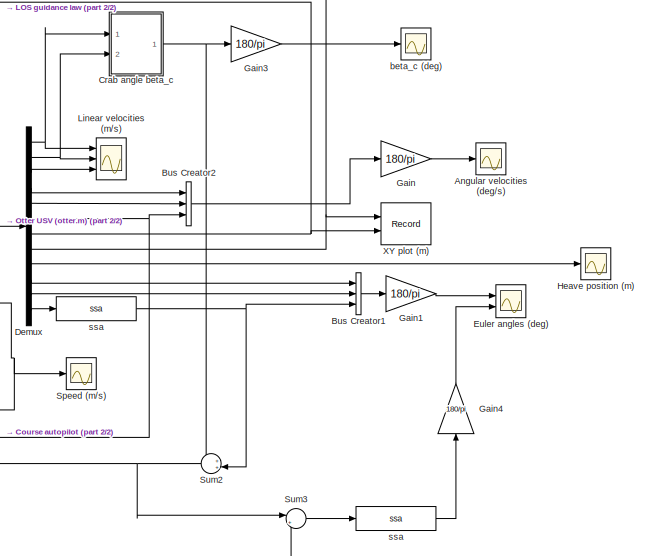
[diagram: root canvas - part 1/2, right side, full height]
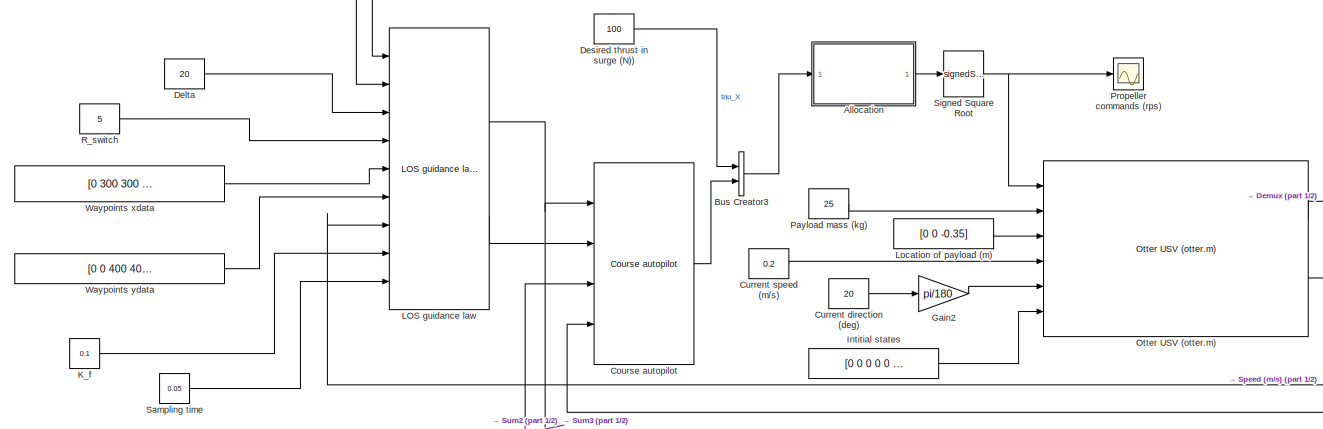
[diagram: root canvas - part 2/2, central region]
MODEL slx_a8864252b03a
KIND model
CONFIG AbsTol = auto
CONFIG EnableMultiTasking = off
CONFIG FixedStep = 0.05
CONFIG MaxStep = auto
CONFIG MinStep = auto
CONFIG RelTol = 1e-3
CONFIG SampleTimeConstraint = Unconstrained
CONFIG SolverName = ode4
CONFIG StartTime = 0.0
CONFIG StopTime = 2000
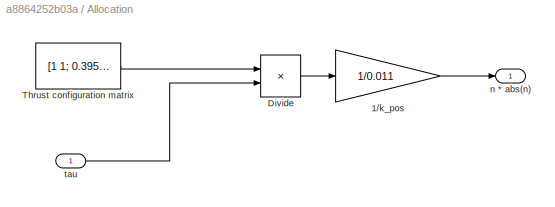
BLOCK [SubSystem] Allocation
  Ports = [1, 1]
  RequestExecContextInheritance = off
BLOCK [Gain] Allocation/1//k_pos
  Gain = 1/0.011
BLOCK [Product] Allocation/Divide
  Inputs = /*
  Multiplication = Matrix(*)
  Ports = [2, 1]
BLOCK [Constant] Allocation/Thrust configuration matrix
  Value = [1 1; 0.395 -0.395]
BLOCK [Outport] Allocation/n * abs(n)
BLOCK [Inport] Allocation/tau
BLOCK [Scope] Angular velocities (deg//s)
  Floating = off
  NumInputPorts = 1
  Ports = [1]
  ScopeSpecificationString = Simulink.scopes.TimeScopeBlockCfg('CurrentConfiguration', extmgr.ConfigurationSet(extmgr.Configuration('Core','General UI',true),extmgr.Configuration('Core','Source UI',true),extmgr.Configuration('Sources','WiredSimulink',true,'DataLoggingVariableName','ScopeData3'),extmgr.Configuration('Visuals','Time Domain',true,'SerializedDisplays',{struct('MinYLimReal','-39.2576','MaxYLimReal','41.18059','YLa...<+1460ch>
BLOCK [BusCreator] Bus Creator1
  DisplayOption = bar
  InheritFromInputs = on
  Inputs = 3
  Ports = [3, 1]
BLOCK [BusCreator] Bus Creator2
  DisplayOption = bar
  InheritFromInputs = on
  Inputs = 3
  Ports = [3, 1]
BLOCK [BusCreator] Bus Creator3
  DisplayOption = bar
  InheritFromInputs = on
  Inputs = 2
  Ports = [2, 1]
BLOCK [Reference] Course autopilot   REF=mssSimulink/Control/Autopilots/Course autopilot
  Ports = [4, 1]
  SourceBlock = mssSimulink/Control/Autopilots/Course autopilot
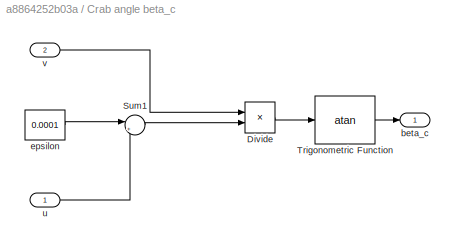
BLOCK [SubSystem] Crab angle beta_c
  Ports = [2, 1]
  RequestExecContextInheritance = off
BLOCK [Product] Crab angle beta_c/Divide
  Inputs = */
  Ports = [2, 1]
BLOCK [Sum] Crab angle beta_c/Sum1
  InputSameDT = on
  Inputs = |++
  OutDataTypeStr = Inherit: Same as first input
  Ports = [2, 1]
  SaturateOnIntegerOverflow = on
BLOCK [Trigonometry] Crab angle beta_c/Trigonometric Function
  Operator = atan
  Ports = [1, 1]
BLOCK [Outport] Crab angle beta_c/beta_c
BLOCK [Constant] Crab angle beta_c/epsilon
  Value = 0.0001
BLOCK [Inport] Crab angle beta_c/u
BLOCK [Inport] Crab angle beta_c/v
  Port = 2
BLOCK [Constant] Current direction (deg)
  Value = 20
BLOCK [Constant] Current speed (m//s)
  Value = 0.2
BLOCK [Constant] Delta
  Value = 20
BLOCK [Demux] Demux
  Outputs = 12
  Ports = [1, 12]
BLOCK [Constant] Desired thrust in surge (N))
  Value = 100
BLOCK [Scope] Euler angles (deg)
  Floating = off
  NumInputPorts = 2
  Ports = [2]
  ScopeSpecificationString = Simulink.scopes.TimeScopeBlockCfg('CurrentConfiguration', extmgr.ConfigurationSet(extmgr.Configuration('Core','General UI',true),extmgr.Configuration('Core','Source UI',true),extmgr.Configuration('Sources','WiredSimulink',true,'DataLoggingVariableName','ScopeData1'),extmgr.Configuration('Visuals','Time Domain',true,'SerializedDisplays',{struct('MinYLimReal','-224.98128','MaxYLimReal','224.99776','...<+2175ch>
BLOCK [Gain] Gain
  Gain = 180/pi
BLOCK [Gain] Gain1
  Gain = 180/pi
BLOCK [Gain] Gain2
  Gain = pi/180
BLOCK [Gain] Gain3
  Gain = 180/pi
BLOCK [Gain] Gain4
  Gain = 180/pi
  NameLocation = right
BLOCK [Scope] Heave position (m)
  Floating = off
  NumInputPorts = 1
  Ports = [1]
  ScopeSpecificationString = Simulink.scopes.TimeScopeBlockCfg('CurrentConfiguration', extmgr.ConfigurationSet(extmgr.Configuration('Core','General UI',true),extmgr.Configuration('Core','Source UI',true),extmgr.Configuration('Sources','WiredSimulink',true,'DataLoggingVariableName','ScopeData4'),extmgr.Configuration('Visuals','Time Domain',true,'SerializedDisplays',{struct('MinYLimReal','0.0303','MaxYLimReal','0.04718','YLabel...<+1498ch>
BLOCK [Constant] Intitial states
  Value = [0 0 0 0 0 0 0 0 0 0 0 0]
BLOCK [Constant] K_f
  Value = 0.1
BLOCK [Reference] LOS guidance law  REF=mssSimulink/Guidance/LOS guidance law for course autopilot
  Ports = [9, 2]
  SourceBlock = mssSimulink/Guidance/LOS guidance law for course autopilot
  SourceType = SubSystem
BLOCK [Scope] Linear velocities (m//s)
  Floating = off
  NumInputPorts = 3
  Ports = [3]
  ScopeSpecificationString = Simulink.scopes.TimeScopeBlockCfg('CurrentConfiguration', extmgr.ConfigurationSet(extmgr.Configuration('Core','General UI',true),extmgr.Configuration('Core','Source UI',true),extmgr.Configuration('Sources','WiredSimulink',true,'DataLoggingVariableName','ScopeData2'),extmgr.Configuration('Visuals','Time Domain',true,'SerializedDisplays',{struct('MinYLimReal','-0.29357','MaxYLimReal','1.69239','YLab...<+3067ch>
BLOCK [Constant] Location of payload (m)
  Value = [0 0 -0.35]
BLOCK [Reference] Otter USV (otter.m)   REF=mssSimulink/Marine craft models/Otter USV (otter.m)
  Ports = [6, 2]
  SourceBlock = mssSimulink/Marine craft models/Otter USV (otter.m)
BLOCK [Constant] Payload mass (kg)
  Value = 25
BLOCK [Scope] Propeller commands (rps)
  Floating = off
  NumInputPorts = 1
  Ports = [1]
  ScopeSpecificationString = Simulink.scopes.TimeScopeBlockCfg('CurrentConfiguration', extmgr.ConfigurationSet(extmgr.Configuration('Core','General UI',true),extmgr.Configuration('Core','Source UI',true),extmgr.Configuration('Sources','WiredSimulink',true,'DataLoggingVariableName','ScopeData1'),extmgr.Configuration('Visuals','Time Domain',true,'SerializedDisplays',{struct('MinYLimReal','-135.47305','MaxYLimReal','172.38499','...<+1491ch>
BLOCK [Constant] R_switch
  Value = 5
BLOCK [Constant] Sampling time
  Value = 0.05
BLOCK [Sqrt] Signed Square Root
  Operator = signedSqrt
BLOCK [Scope] Speed (m//s)
  Floating = off
  NumInputPorts = 1
  Ports = [1]
  ScopeSpecificationString = Simulink.scopes.TimeScopeBlockCfg('CurrentConfiguration', extmgr.ConfigurationSet(extmgr.Configuration('Core','General UI',true),extmgr.Configuration('Core','Source UI',true),extmgr.Configuration('Sources','WiredSimulink',true),extmgr.Configuration('Visuals','Time Domain',true,'SerializedDisplays',{struct('MinYLimReal','-0.27274','MaxYLimReal','2.45465','YLabelReal','','MinYLimMag','0.00000','MaxY...<+1415ch>
BLOCK [Sum] Sum2
  InputSameDT = on
  Inputs = ++|
  NameLocation = top
  OutDataTypeStr = Inherit: Same as first input
  Ports = [2, 1]
  SaturateOnIntegerOverflow = on
BLOCK [Sum] Sum3
  InputSameDT = on
  Inputs = |+-
  OutDataTypeStr = Inherit: Same as first input
  Ports = [2, 1]
  SaturateOnIntegerOverflow = on
BLOCK [Constant] Waypoints xdata
  Value = [0 300 300 0 0 300 300 0 0 200 200]'
BLOCK [Constant] Waypoints ydata
  Value = [0 0 400 400 -100 -100 300 300 0 0 200]'
BLOCK [Record] XY plot (m)
  CompatibilityTag = XY
  FileSettingsInternal = {"entries":[{"content":{"excelSettings":{"content":{},"type":"Streamout.ExcelSettings"}},"type":"Streamout.FileSettingStorage","uuid":"62264fe3-c224-4e02-ba40-ee26fbad04c6"}],"packageUris":["http://schema.mathworks.com/mf0/streamout_blocks/R2020a"],"version":"1.0"}
  Layout = [1 1]
  Ports = [2]
  SignalsInternal = {"entries":[{"content":{"signals":[{"content":{"blockPath":["demoOtterUSVPathFollowingCourseControl/XY plot (m)"],"channel":[],"dimensions":[1],"domain":"demoOtterUSVPathFollowingCourseControl/XY plot (m)","lineColor":"#a2142f","plots":[1],"port":1,"sid":[""],"signalID":999,"signalName":"Demux:8"},"type":"RecordBlkView.Signal","uuid":"08d88ea4-53d3-4d1b-b7a4-8d71b476be81"},{"content":{"blockPath":...<+494ch>
  VisualizationBindings = {"xyplotplugin":{"info":[{"series":[{"bindingParametersList":[{"parameter":"X-Axis","signalID":999,"signalName":"Demux:8"},{"parameter":"Y-Axis","signalID":1003,"signalName":"Demux:7"}],"seriesID":41921}],"subplotID":1}]}}
  st = -1
BLOCK [Scope] beta_c (deg)
  Floating = off
  NumInputPorts = 1
  Ports = [1]
  ScopeSpecificationString = Simulink.scopes.TimeScopeBlockCfg('CurrentConfiguration', extmgr.ConfigurationSet(extmgr.Configuration('Core','General UI',true),extmgr.Configuration('Core','Source UI',true),extmgr.Configuration('Sources','WiredSimulink',true,'DataLoggingVariableName','ScopeData1'),extmgr.Configuration('Visuals','Time Domain',true,'SerializedDisplays',{struct('MinYLimReal','-59.90989','MaxYLimReal','27.66045','YL...<+1592ch>
BLOCK [Reference] ssa   REF=mssSimulink/Utilities/Math Operations/ssa
  Ports = [1, 1]
  SourceBlock = mssSimulink/Utilities/Math Operations/ssa
  SourceType = SubSystem
BLOCK [Reference] ssa     REF=mssSimulink/Utilities/Math Operations/ssa
  Ports = [1, 1]
  SourceBlock = mssSimulink/Utilities/Math Operations/ssa
  SourceType = SubSystem
LINE Allocation/1//k_pos:1 -> Allocation/n * abs(n):1
LINE Allocation/Divide:1 -> Allocation/1//k_pos:1
LINE Allocation/Thrust configuration matrix:1 -> Allocation/Divide:1
LINE Allocation/tau:1 -> Allocation/Divide:2
LINE Allocation:1 -> Signed Square Root:1
LINE Bus Creator1:1 -> Gain1:1
LINE Bus Creator2:1 -> Gain:1
LINE Bus Creator3:1 -> Allocation:1
LINE Course autopilot :1 -> Bus Creator3:2
LINE Crab angle beta_c/Divide:1 -> Crab angle beta_c/Trigonometric Function:1
LINE Crab angle beta_c/Sum1:1 -> Crab angle beta_c/Divide:2
LINE Crab angle beta_c/Trigonometric Function:1 -> Crab angle beta_c/beta_c:1
LINE Crab angle beta_c/epsilon:1 -> Crab angle beta_c/Sum1:1
LINE Crab angle beta_c/u:1 -> Crab angle beta_c/Sum1:2
LINE Crab angle beta_c/v:1 -> Crab angle beta_c/Divide:1
NET Crab angle beta_c:1 -> Gain3:1, Sum2:1
LINE Current direction (deg):1 -> Gain2:1
LINE Current speed (m//s):1 -> Otter USV (otter.m) :4
LINE Delta:1 -> LOS guidance law:3
NET Demux:1 -> Crab angle beta_c:1, Linear velocities (m//s):1
LINE Demux:10 -> Bus Creator1:1
LINE Demux:11 -> Bus Creator1:2
LINE Demux:12 -> ssa   :1
NET Demux:2 -> Crab angle beta_c:2, Linear velocities (m//s):2
LINE Demux:3 -> Linear velocities (m//s):3
LINE Demux:4 -> Bus Creator2:1
LINE Demux:5 -> Bus Creator2:2
NET Demux:6 -> Bus Creator2:3, Course autopilot :4
NET Demux:7 -> LOS guidance law:1, XY plot (m):2
NET Demux:8 -> LOS guidance law:2, XY plot (m):1
LINE Demux:9 -> Heave position (m):1
LINE Desired thrust in surge (N)):1 -> Bus Creator3:1
LINE Gain1:1 -> Euler angles (deg):1
LINE Gain2:1 -> Otter USV (otter.m) :5
LINE Gain3:1 -> beta_c (deg):1
LINE Gain4:1 -> Euler angles (deg):2
LINE Gain:1 -> Angular velocities (deg//s):1
LINE Intitial states:1 -> Otter USV (otter.m) :6
LINE K_f:1 -> LOS guidance law:8
NET LOS guidance law:1 -> Course autopilot :1, Sum3:2
LINE LOS guidance law:2 -> Course autopilot :2
LINE Location of payload (m):1 -> Otter USV (otter.m) :3
LINE Otter USV (otter.m) :1 -> Demux:1
NET Otter USV (otter.m) :2 -> LOS guidance law:7, Speed (m//s):1
LINE Payload mass (kg):1 -> Otter USV (otter.m) :2
LINE R_switch:1 -> LOS guidance law:4
LINE Sampling time:1 -> LOS guidance law:9
NET Signed Square Root:1 -> Otter USV (otter.m) :1, Propeller commands (rps):1
NET Sum2:1 -> Course autopilot :3, Sum3:1
LINE Sum3:1 -> ssa :1
LINE Waypoints xdata:1 -> LOS guidance law:5
LINE Waypoints ydata:1 -> LOS guidance law:6
NET ssa   :1 -> Bus Creator1:3, Sum2:2
LINE ssa :1 -> Gain4:1
note: NET lines group one-source signal fan-out (src -> all destinations, sorted); 1:1 wires keep LINE
